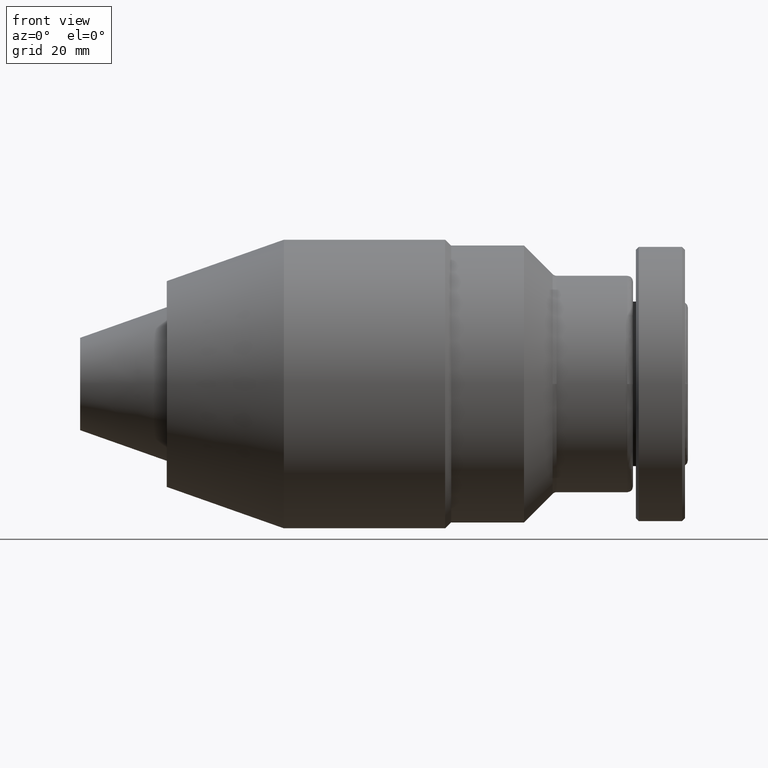
[diagram: clean part render]
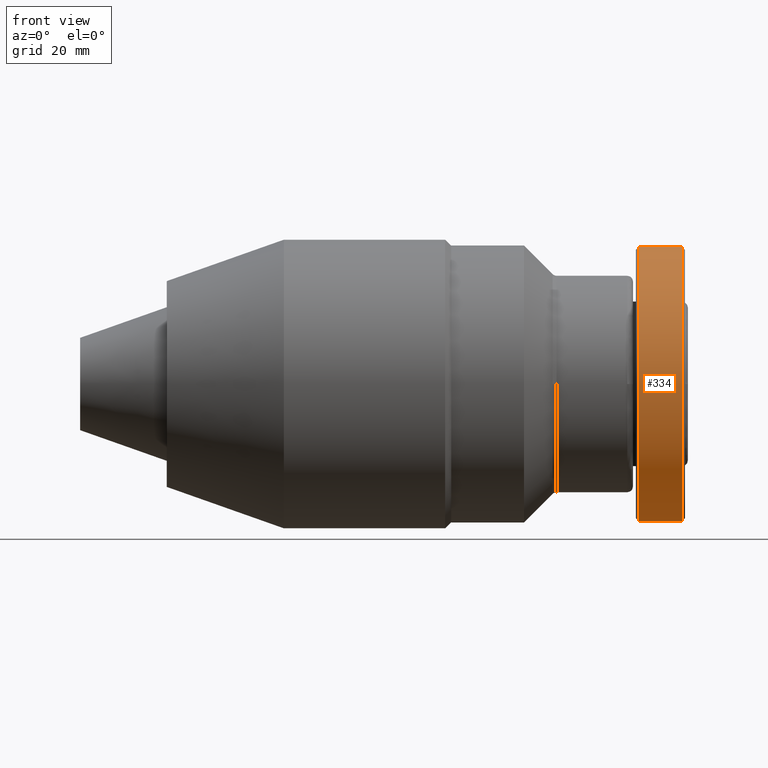
[diagram: same view with one face highlighted and labeled with its STEP entity id]
A machine part, front view. The second image highlights one B-rep face of the part: STEP entity #334.
In plain terms, the highlighted cylindrical surface (partial cylindrical patch) has radius 23.75 mm, axis along (1, 0, 0).
Its self-contained STEP definition (entity closure, byte-faithful):
#45 = VECTOR ( 'NONE', #208, 1000.000000000000000 ) ;
#93 = DIRECTION ( 'NONE',  ( 1.000000000000000000, 0.0000000000000000000, 0.0000000000000000000 ) ) ;
#107 = VECTOR ( 'NONE', #93, 1000.000000000000000 ) ;
#126 = VERTEX_POINT ( 'NONE', #725 ) ;
#208 = DIRECTION ( 'NONE',  ( 1.000000000000000000, 0.0000000000000000000, 0.0000000000000000000 ) ) ;
#216 = CARTESIAN_POINT ( 'NONE',  ( 96.79999999999999700, 0.0000000000000000000, -23.75000000000000000 ) ) ;
#255 = ORIENTED_EDGE ( 'NONE', *, *, #258, .T. ) ;
#258 = EDGE_CURVE ( 'NONE', #1476, #126, #1584, .T. ) ;
#271 = AXIS2_PLACEMENT_3D ( 'NONE', #1346, #1481, #839 ) ;
#332 = EDGE_CURVE ( 'NONE', #1599, #126, #1416, .T. ) ;
#334 = ADVANCED_FACE ( 'NONE', ( #639 ), #453, .T. ) ;
#405 = ORIENTED_EDGE ( 'NONE', *, *, #1202, .F. ) ;
#453 = CYLINDRICAL_SURFACE ( 'NONE', #495, 23.75000000000000000 ) ;
#469 = DIRECTION ( 'NONE',  ( 1.000000000000000000, 0.0000000000000000000, 0.0000000000000000000 ) ) ;
#482 = EDGE_LOOP ( 'NONE', ( #405, #1031, #255, #1549 ) ) ;
#495 = AXIS2_PLACEMENT_3D ( 'NONE', #1124, #469, #1093 ) ;
#549 = VERTEX_POINT ( 'NONE', #678 ) ;
#566 = AXIS2_PLACEMENT_3D ( 'NONE', #1402, #612, #1175 ) ;
#612 = DIRECTION ( 'NONE',  ( 1.000000000000000000, 0.0000000000000000000, 0.0000000000000000000 ) ) ;
#639 = FACE_OUTER_BOUND ( 'NONE', #482, .T. ) ;
#678 = CARTESIAN_POINT ( 'NONE',  ( 96.80000000000011100, 2.908536147974964100E-015, 23.75000000000000000 ) ) ;
#725 = CARTESIAN_POINT ( 'NONE',  ( 104.3000000000000000, 2.908536147974964100E-015, -23.75000000000000000 ) ) ;
#778 = EDGE_CURVE ( 'NONE', #549, #1476, #914, .T. ) ;
#839 = DIRECTION ( 'NONE',  ( 0.0000000000000000000, 1.000000000000000000, 0.0000000000000000000 ) ) ;
#877 = LINE ( 'NONE', #937, #45 ) ;
#914 = CIRCLE ( 'NONE', #566, 23.75000000000000000 ) ;
#937 = CARTESIAN_POINT ( 'NONE',  ( 96.79999999999999700, 2.908536147974964100E-015, 23.75000000000000000 ) ) ;
#1021 = CARTESIAN_POINT ( 'NONE',  ( 104.3000000000000000, 0.0000000000000000000, 23.75000000000000000 ) ) ;
#1031 = ORIENTED_EDGE ( 'NONE', *, *, #778, .T. ) ;
#1093 = DIRECTION ( 'NONE',  ( 0.0000000000000000000, 0.0000000000000000000, -1.000000000000000000 ) ) ;
#1124 = CARTESIAN_POINT ( 'NONE',  ( 96.79999999999999700, 0.0000000000000000000, 0.0000000000000000000 ) ) ;
#1175 = DIRECTION ( 'NONE',  ( -4.674623261579606800E-015, 1.000000000000000000, 0.0000000000000000000 ) ) ;
#1202 = EDGE_CURVE ( 'NONE', #549, #1599, #877, .T. ) ;
#1346 = CARTESIAN_POINT ( 'NONE',  ( 104.3000000000000000, 0.0000000000000000000, 0.0000000000000000000 ) ) ;
#1376 = CARTESIAN_POINT ( 'NONE',  ( 96.80000000000011100, 0.0000000000000000000, -23.75000000000000000 ) ) ;
#1402 = CARTESIAN_POINT ( 'NONE',  ( 96.80000000000011100, 0.0000000000000000000, 0.0000000000000000000 ) ) ;
#1416 = CIRCLE ( 'NONE', #271, 23.75000000000000000 ) ;
#1476 = VERTEX_POINT ( 'NONE', #1376 ) ;
#1481 = DIRECTION ( 'NONE',  ( 1.000000000000000000, 0.0000000000000000000, 0.0000000000000000000 ) ) ;
#1549 = ORIENTED_EDGE ( 'NONE', *, *, #332, .F. ) ;
#1584 = LINE ( 'NONE', #216, #107 ) ;
#1599 = VERTEX_POINT ( 'NONE', #1021 ) ;